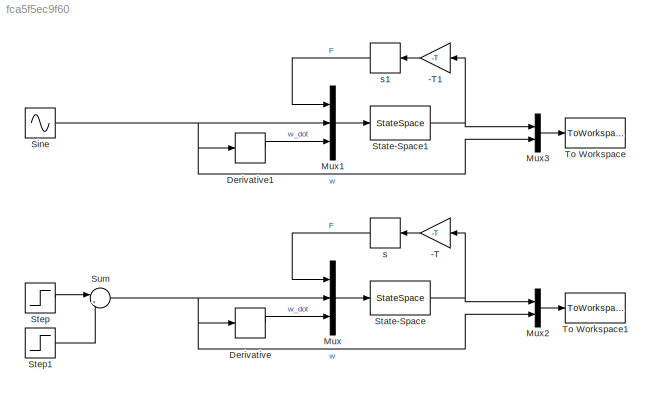
MODEL slx_fca5f5ec9f60
KIND model
CONFIG AbsTol = auto
CONFIG EnableMultiTasking = off
CONFIG FixedStep = auto
CONFIG MaxStep = auto
CONFIG MinStep = auto
CONFIG RelTol = 1e-3
CONFIG SampleTimeConstraint = Unconstrained
CONFIG Solver = VariableStepAuto
CONFIG SolverName = VariableStepAuto
CONFIG StartTime = 0.0
CONFIG StopTime = 30
BLOCK [Gain] -T
  Gain = -T
  OutDataTypeStr = Inherit: Inherit via internal rule
  ParamDataTypeStr = Inherit: Inherit via internal rule
  SaturateOnIntegerOverflow = off
BLOCK [Gain] -T1
  Gain = -T
  OutDataTypeStr = Inherit: Inherit via internal rule
  ParamDataTypeStr = Inherit: Inherit via internal rule
  SaturateOnIntegerOverflow = off
BLOCK [Derivative] Derivative
BLOCK [Derivative] Derivative1
BLOCK [Mux] Mux
  DisplayOption = bar
  Inputs = 3
  Ports = [3, 1]
BLOCK [Mux] Mux1
  DisplayOption = bar
  Inputs = 3
  Ports = [3, 1]
BLOCK [Mux] Mux2
  DisplayOption = bar
  Inputs = 2
  Ports = [2, 1]
BLOCK [Mux] Mux3
  DisplayOption = bar
  Inputs = 2
  Ports = [2, 1]
BLOCK [Sin] Sine
  Amplitude = 0.05
  Frequency = sinefreq
  Ports = [0, 1]
  SampleTime = 0
BLOCK [StateSpace] State-Space
  A = [0 1 0 0;-ks/ms 0 ks/ms 0;0 0 0 1;ks/mp 0 -(ks+kp)/mp -cp/mp]
  B = [0 0 0;1/ms 0 0;0 0 0;-1/mp kp/mp cp/mp]
  C = [1 0 0 0]
  D = [0 0 0]
  InitialCondition = 0
  Ports = [1, 1]
BLOCK [StateSpace] State-Space1
  A = [0 1 0 0;-ks/ms 0 ks/ms 0;0 0 0 1;ks/mp 0 -(ks+kp)/mp -cp/mp]
  B = [0 0 0;1/ms 0 0;0 0 0;-1/mp kp/mp cp/mp]
  C = [1 0 0 0]
  D = [0 0 0]
  InitialCondition = 0
  Ports = [1, 1]
BLOCK [Step] Step
  After = 0.05
  SampleTime = 0
BLOCK [Step] Step1
  After = -0.05
  SampleTime = 0
  Time = 2
BLOCK [Sum] Sum
  IconShape = round
  InputSameDT = off
  Inputs = |++
  OutDataTypeStr = Inherit: Inherit via internal rule
  Ports = [2, 1]
  SaturateOnIntegerOverflow = off
BLOCK [ToWorkspace] To Workspace
  FixptAsFi = on
  MaxDataPoints = inf
  Ports = [1]
  SampleTime = -1
  Save2DSignal = 3-D array (concatenate along third dimension)
  SaveFormat = Structure With Time
  VariableName = Sim_sine
BLOCK [ToWorkspace] To Workspace1
  FixptAsFi = on
  MaxDataPoints = inf
  Ports = [1]
  SampleTime = -1
  Save2DSignal = 3-D array (concatenate along third dimension)
  SaveFormat = Structure With Time
  VariableName = Sim_step
BLOCK [Derivative] s
BLOCK [Derivative] s1
LINE -T1:1 -> s1:1
LINE -T:1 -> s:1
LINE Derivative1:1 -> Mux1:3
LINE Derivative:1 -> Mux:3
LINE Mux1:1 -> State-Space1:1
LINE Mux2:1 -> To Workspace1:1
LINE Mux3:1 -> To Workspace:1
LINE Mux:1 -> State-Space:1
NET Sine:1 -> Derivative1:1, Mux1:2, Mux3:2
NET State-Space1:1 -> -T1:1, Mux3:1
NET State-Space:1 -> -T:1, Mux2:1
LINE Step1:1 -> Sum:2
LINE Step:1 -> Sum:1
NET Sum:1 -> Derivative:1, Mux2:2, Mux:2
LINE s1:1 -> Mux1:1
LINE s:1 -> Mux:1
note: NET lines group one-source signal fan-out (src -> all destinations, sorted); 1:1 wires keep LINE
